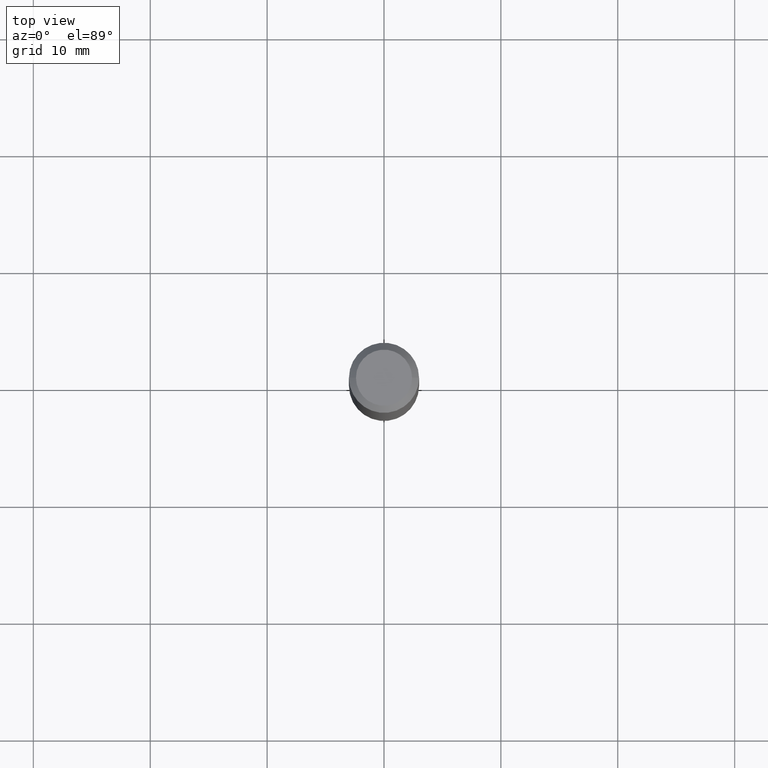
[diagram: clean part render]
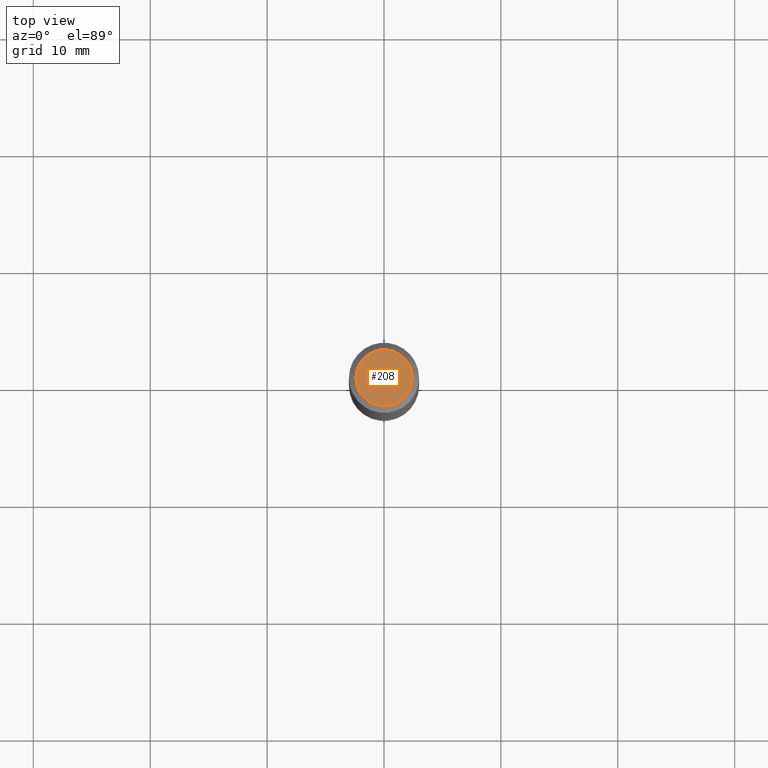
[diagram: same view with one face highlighted and labeled with its STEP entity id]
A machine part, top view. The second image highlights one B-rep face of the part: STEP entity #208.
In plain terms, the highlighted planar face has unit normal (0, -0, -1).
Its self-contained STEP definition (entity closure, byte-faithful):
#13 = AXIS2_PLACEMENT_3D ( 'NONE', #243, #395, #433 ) ;
#22 = AXIS2_PLACEMENT_3D ( 'NONE', #229, #379, #33 ) ;
#33 = DIRECTION ( 'NONE',  ( 1.000000000000000000, -6.982962677686267499E-15, 4.875432709231658792E-29 ) ) ;
#78 = DIRECTION ( 'NONE',  ( 2.438088387897960049E-29, -3.491481338843145188E-15, -1.000000000000000000 ) ) ;
#115 = PLANE ( 'NONE',  #429 ) ;
#141 = CIRCLE ( 'NONE', #22, 0.09447999999999998066 ) ;
#184 = ORIENTED_EDGE ( 'NONE', *, *, #214, .T. ) ;
#202 = CARTESIAN_POINT ( 'NONE',  ( 0.09447999999999998066, -7.704367267948738690E-16, -1.928573779296752193E-17 ) ) ;
#208 = ADVANCED_FACE ( 'NONE', ( #303 ), #115, .F. ) ;
#214 = EDGE_CURVE ( 'NONE', #368, #295, #141, .T. ) ;
#229 = CARTESIAN_POINT ( 'NONE',  ( 4.716267017698007905E-46, -6.733579360998555036E-32, -1.928573779297252010E-17 ) ) ;
#236 = EDGE_CURVE ( 'NONE', #295, #368, #305, .T. ) ;
#243 = CARTESIAN_POINT ( 'NONE',  ( 4.716267017698007905E-46, -6.733579360998555036E-32, -1.928573779297252010E-17 ) ) ;
#295 = VERTEX_POINT ( 'NONE', #202 ) ;
#303 = FACE_OUTER_BOUND ( 'NONE', #329, .T. ) ;
#305 = CIRCLE ( 'NONE', #13, 0.09447999999999998066 ) ;
#329 = EDGE_LOOP ( 'NONE', ( #184, #466 ) ) ;
#368 = VERTEX_POINT ( 'NONE', #481 ) ;
#379 = DIRECTION ( 'NONE',  ( -2.445468806185136597E-29, 3.491481338843145583E-15, 1.000000000000000000 ) ) ;
#395 = DIRECTION ( 'NONE',  ( -2.445468806185136597E-29, 3.491481338843145583E-15, 1.000000000000000000 ) ) ;
#416 = CARTESIAN_POINT ( 'NONE',  ( 2.358133508849003952E-46, -3.366789680499277518E-32, -9.642868896486260050E-18 ) ) ;
#429 = AXIS2_PLACEMENT_3D ( 'NONE', #416, #78, #458 ) ;
#433 = DIRECTION ( 'NONE',  ( 1.000000000000000000, -6.982962677686267499E-15, 4.875432709231658792E-29 ) ) ;
#458 = DIRECTION ( 'NONE',  ( -1.000000000000000000, 6.982962677686265922E-15, -4.876176775795935793E-29 ) ) ;
#466 = ORIENTED_EDGE ( 'NONE', *, *, #236, .T. ) ;
#481 = CARTESIAN_POINT ( 'NONE',  ( -0.09447999999999998066, 7.009847083995354710E-16, -1.928573779297727792E-17 ) ) ;